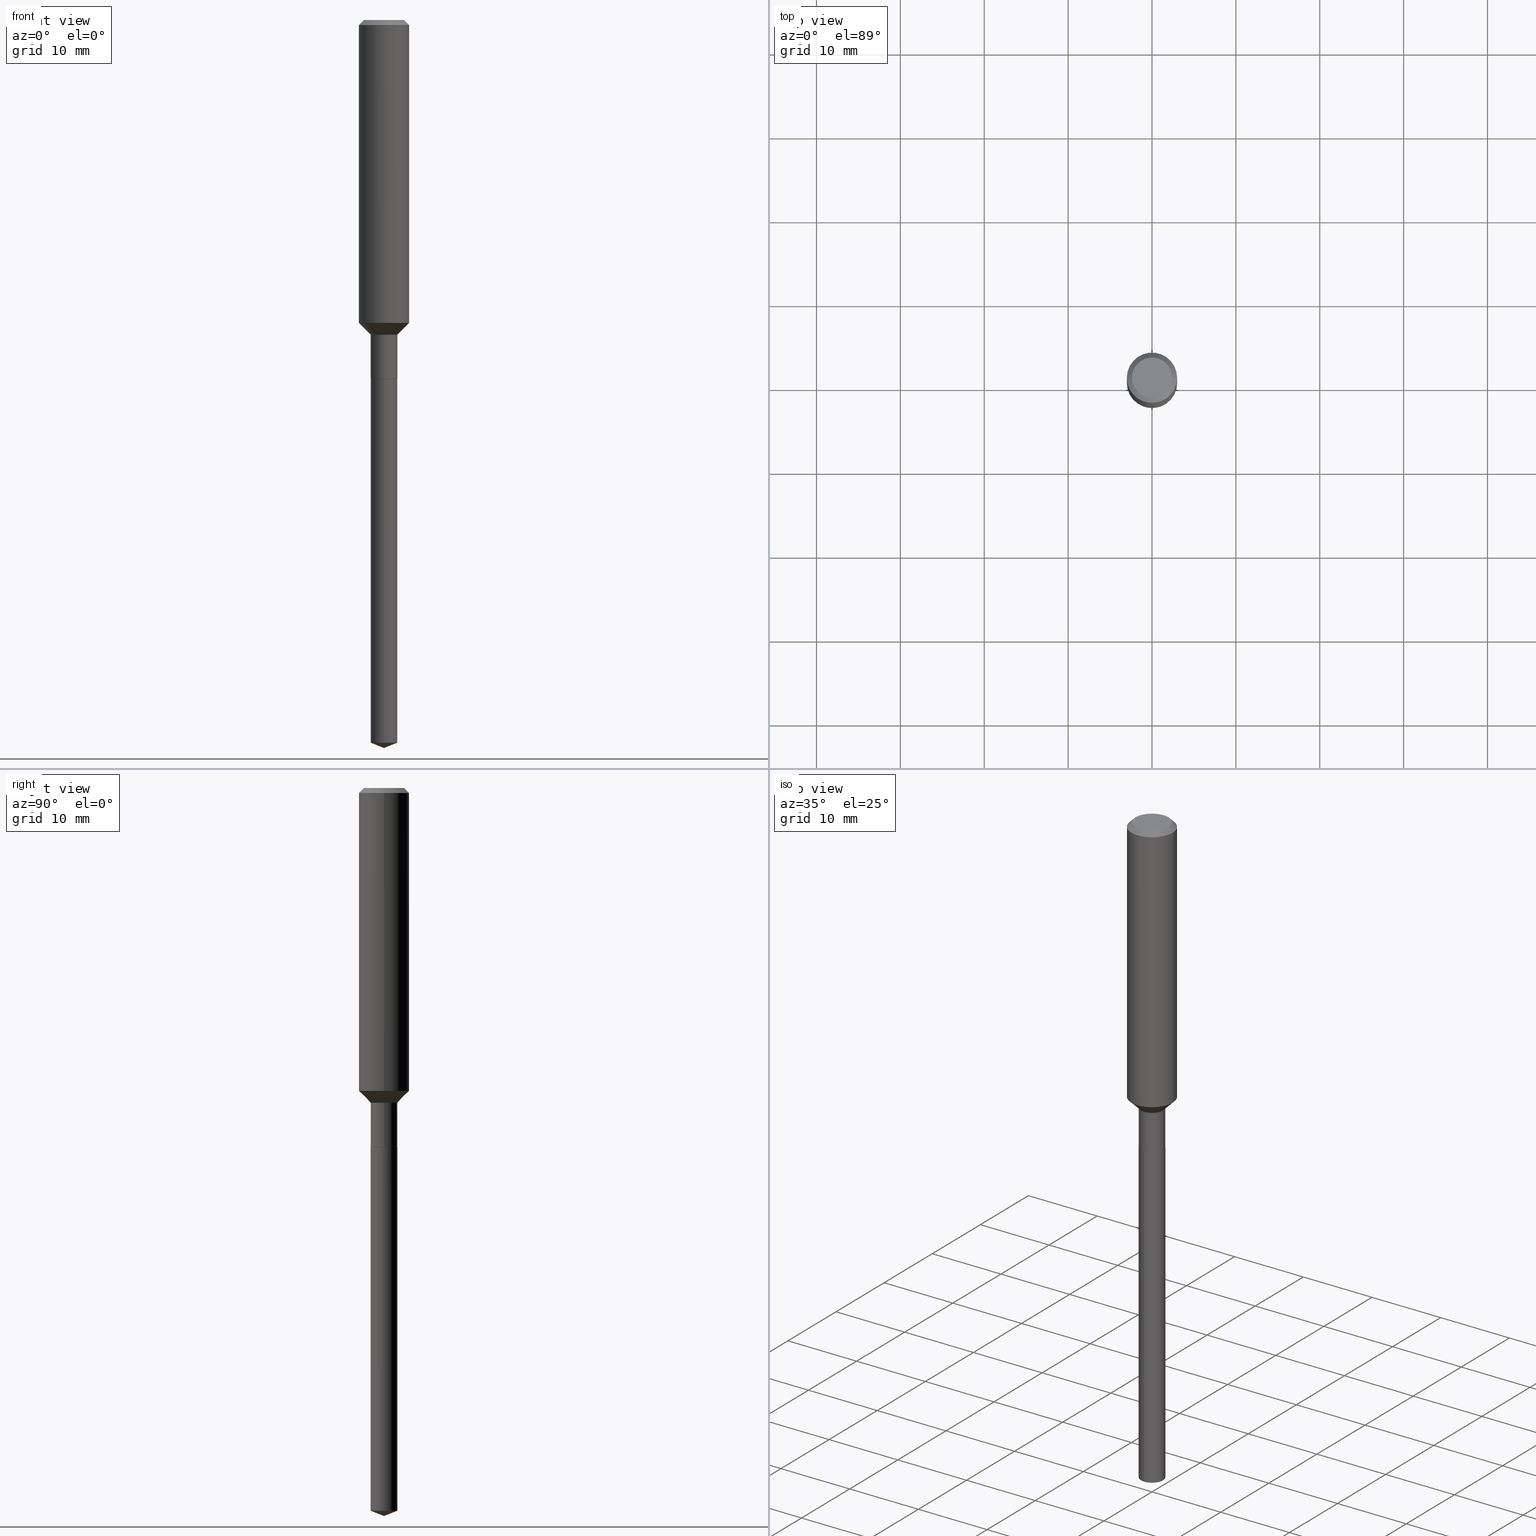
[diagram: canonical four-view strip — front | top / right | iso, engineering-drawing reading convention]
A machine part, canonical four-view strip (front | top / right | iso — engineering-drawing reading convention). The complete STEP part file that produces these views, byte-faithful:
ISO-10303-21;
HEADER;
FILE_DESCRIPTION (( 'STEP AP203' ),
    '1' );
FILE_NAME ('56508.STEP',
    '2024-04-24T18:16:03',
    ( '' ),
    ( '' ),
    'SwSTEP 2.0',
    'SolidWorks 2023',
    '' );
FILE_SCHEMA (( 'CONFIG_CONTROL_DESIGN' ));
ENDSEC;

DATA;
#1 = DIRECTION ( 'NONE',  ( -2.445468806185136597E-29, 3.491481338843145583E-15, 1.000000000000000000 ) ) ;
#2 = VERTEX_POINT ( 'NONE', #286 ) ;
#3 = PLANE ( 'NONE',  #65 ) ;
#4 = COORDINATED_UNIVERSAL_TIME_OFFSET ( 5, 0, .BEHIND. ) ;
#5 = DIRECTION ( 'NONE',  ( -2.449250081868980947E-29, 3.486066336847033927E-15, 1.000000000000000000 ) ) ;
#6 = CARTESIAN_POINT ( 'NONE',  ( 4.114990360167727561E-29, -5.875115648871358458E-15, -1.682699999999999196 ) ) ;
#7 = AXIS2_PLACEMENT_3D ( 'NONE', #366, #182, #374 ) ;
#8 = LINE ( 'NONE', #305, #319 ) ;
#9 = EDGE_LOOP ( 'NONE', ( #16, #257, #486, #443 ) ) ;
#10 = ADVANCED_FACE ( 'NONE', ( #490 ), #435, .T. ) ;
#11 = CARTESIAN_POINT ( 'NONE',  ( 0.09447999999999998066, -7.704367267948738690E-16, -2.700101262759583929E-17 ) ) ;
#12 = CARTESIAN_POINT ( 'NONE',  ( 3.612446520496680883E-29, -5.157616233739090514E-15, -1.477199999999998958 ) ) ;
#13 = DIRECTION ( 'NONE',  ( -2.449250081868980947E-29, 3.486066336847033927E-15, 1.000000000000000000 ) ) ;
#14 = SECURITY_CLASSIFICATION ( '', '', #140 ) ;
#15 = CARTESIAN_POINT ( 'NONE',  ( 6.603013411620882309E-46, -9.427353171913646324E-32, -2.700101262760083747E-17 ) ) ;
#16 = ORIENTED_EDGE ( 'NONE', *, *, #50, .F. ) ;
#17 = ORIENTED_EDGE ( 'NONE', *, *, #406, .T. ) ;
#18 = ORIENTED_EDGE ( 'NONE', *, *, #194, .F. ) ;
#19 = AXIS2_PLACEMENT_3D ( 'NONE', #193, #341, #201 ) ;
#20 = MECHANICAL_CONTEXT ( 'NONE', #469, 'mechanical' ) ;
#21 = VERTEX_POINT ( 'NONE', #68 ) ;
#22 = DATE_AND_TIME ( #207, #436 ) ;
#23 = ORIENTED_EDGE ( 'NONE', *, *, #194, .T. ) ;
#24 = PERSON_AND_ORGANIZATION ( #269, #101 ) ;
#25 = DIRECTION ( 'NONE',  ( -2.445468806185136597E-29, 3.491481338843145583E-15, 1.000000000000000000 ) ) ;
#26 = CARTESIAN_POINT ( 'NONE',  ( 0.000000000000000000, 0.000000000000000000, 0.000000000000000000 ) ) ;
#27 = ADVANCED_FACE ( 'NONE', ( #365 ), #148, .T. ) ;
#28 = CIRCLE ( 'NONE', #109, 0.06249999999999981265 ) ;
#29 = CIRCLE ( 'NONE', #118, 0.06250000000000001388 ) ;
#30 = PERSON_AND_ORGANIZATION_ROLE ( 'creator' ) ;
#31 = CYLINDRICAL_SURFACE ( 'NONE', #268, 0.06249999999999981265 ) ;
#32 = FACE_OUTER_BOUND ( 'NONE', #289, .T. ) ;
#33 = CARTESIAN_POINT ( 'NONE',  ( 4.116213094570819802E-29, -5.876861389540779961E-15, -1.683199999999999141 ) ) ;
#34 = DIRECTION ( 'NONE',  ( 1.000000000000000000, -6.982962677686266711E-15, 4.876176775795935793E-29 ) ) ;
#35 = EDGE_CURVE ( 'NONE', #168, #176, #361, .T. ) ;
#36 = DIRECTION ( 'NONE',  ( -2.445468806185136597E-29, 3.491481338843145583E-15, 1.000000000000000000 ) ) ;
#37 = CARTESIAN_POINT ( 'NONE',  ( 0.1181000000000002048, -5.788177763534160480E-15, -1.421599999999998865 ) ) ;
#38 = AXIS2_PLACEMENT_3D ( 'NONE', #12, #458, #302 ) ;
#39 = CIRCLE ( 'NONE', #489, 0.06250000000000001388 ) ;
#40 = EDGE_LOOP ( 'NONE', ( #419, #246, #376, #151 ) ) ;
#41 = CARTESIAN_POINT ( 'NONE',  ( 0.1181000000000001077, -8.246878922347488542E-16, 5.758764772215005345E-30 ) ) ;
#42 = CARTESIAN_POINT ( 'NONE',  ( 4.440892098501460382E-16, 0.06249999999999415051, -1.683199999999999363 ) ) ;
#43 = CC_DESIGN_DATE_AND_TIME_ASSIGNMENT ( #110, #133, ( #391 ) ) ;
#44 = DIRECTION ( 'NONE',  ( 6.611014441532066589E-15, 0.9304175679820270162, 0.3665012267242909738 ) ) ;
#45 = DATE_TIME_ROLE ( 'classification_date' ) ;
#46 = CYLINDRICAL_SURFACE ( 'NONE', #350, 0.1181000000000001077 ) ;
#47 = CARTESIAN_POINT ( 'NONE',  ( 3.612446520496680883E-29, -5.157616233739090514E-15, -1.477199999999998958 ) ) ;
#48 = MANIFOLD_SOLID_BREP ( 'Body-Move/Copy2[2]', #261 ) ;
#49 = EDGE_CURVE ( 'NONE', #64, #111, #292, .T. ) ;
#50 = EDGE_CURVE ( 'NONE', #111, #141, #251, .T. ) ;
#51 = AXIS2_PLACEMENT_3D ( 'NONE', #33, #25, #320 ) ;
#52 = DIRECTION ( 'NONE',  ( 1.000000000000000000, -6.982962677686269077E-15, 0.000000000000000000 ) ) ;
#53 = CIRCLE ( 'NONE', #300, 0.09447999999999998066 ) ;
#54 = DIRECTION ( 'NONE',  ( -2.445468806185136597E-29, 3.491481338843145583E-15, 1.000000000000000000 ) ) ;
#55 = DIRECTION ( 'NONE',  ( -2.445468806185136597E-29, 3.491481338843145583E-15, 1.000000000000000000 ) ) ;
#56 = DIRECTION ( 'NONE',  ( 0.7071067811864509833, -2.468850131081245741E-15, 0.7071067811866440511 ) ) ;
#57 = EDGE_LOOP ( 'NONE', ( #357, #316, #243 ) ) ;
#58 = VECTOR ( 'NONE', #260, 39.37007874015748143 ) ;
#59 = EDGE_LOOP ( 'NONE', ( #157, #205, #427, #166 ) ) ;
#60 = APPROVAL ( #437, 'UNSPECIFIED' ) ;
#61 = DESIGN_CONTEXT ( 'detailed design', #442, 'design' ) ;
#62 = ORIENTED_EDGE ( 'NONE', *, *, #35, .F. ) ;
#63 = ADVANCED_FACE ( 'NONE', ( #359 ), #475, .T. ) ;
#64 = VERTEX_POINT ( 'NONE', #183 ) ;
#65 = AXIS2_PLACEMENT_3D ( 'NONE', #220, #369, #247 ) ;
#66 = PERSON_AND_ORGANIZATION ( #269, #101 ) ;
#67 = VERTEX_POINT ( 'NONE', #212 ) ;
#68 = CARTESIAN_POINT ( 'NONE',  ( 8.369087529746306125E-29, -1.191188867300631324E-14, -3.416999999999998927 ) ) ;
#69 = DIRECTION ( 'NONE',  ( 1.000000000000000000, -6.982962677686267499E-15, 4.875432709231658792E-29 ) ) ;
#70 = PERSON_AND_ORGANIZATION ( #269, #101 ) ;
#71 = DIRECTION ( 'NONE',  ( 1.000000000000000000, -6.982962677686266711E-15, 4.876176775795935793E-29 ) ) ;
#72 = CARTESIAN_POINT ( 'NONE',  ( -0.1180999999999999966, 7.422191030112725094E-16, -0.02362000000000014435 ) ) ;
#73 = CIRCLE ( 'NONE', #385, 0.1180999999999999966 ) ;
#74 = DATE_AND_TIME ( #473, #301 ) ;
#75 = ORIENTED_EDGE ( 'NONE', *, *, #149, .T. ) ;
#76 = DIRECTION ( 'NONE',  ( 1.000000000000000000, -6.982962677686269077E-15, 0.000000000000000000 ) ) ;
#77 = ORIENTED_EDGE ( 'NONE', *, *, #481, .F. ) ;
#78 = DIRECTION ( 'NONE',  ( -2.445468806185136877E-29, 3.491481338843145188E-15, 1.000000000000000000 ) ) ;
#79 = CARTESIAN_POINT ( 'NONE',  ( -0.06249999999999981265, 4.440892098500612850E-16, -3.074334431409306655E-30 ) ) ;
#80 = DIRECTION ( 'NONE',  ( -2.449250081868980947E-29, 3.486066336847033927E-15, 1.000000000000000000 ) ) ;
#81 = CLOSED_SHELL ( 'NONE', ( #97, #387, #10, #128, #356 ) ) ;
#82 = EDGE_CURVE ( 'NONE', #438, #395, #328, .T. ) ;
#83 = AXIS2_PLACEMENT_3D ( 'NONE', #26, #453, #34 ) ;
#84 = CARTESIAN_POINT ( 'NONE',  ( 0.000000000000000000, 0.000000000000000000, 0.000000000000000000 ) ) ;
#85 = DIRECTION ( 'NONE',  ( -6.982962677686265922E-15, -1.000000000000000000, 4.370956789862820361E-15 ) ) ;
#86 = EDGE_LOOP ( 'NONE', ( #472, #314 ) ) ;
#87 = CARTESIAN_POINT ( 'NONE',  ( 3.612446520496680883E-29, -5.157616233739090514E-15, -1.477199999999998958 ) ) ;
#88 = CARTESIAN_POINT ( 'NONE',  ( -0.06249999999999981265, -5.072276731455163842E-15, -1.477199999999998958 ) ) ;
#89 = LOCAL_TIME ( 14, 16, 3.000000000000000000, #135 ) ;
#90 = EDGE_CURVE ( 'NONE', #141, #395, #422, .T. ) ;
#91 = CARTESIAN_POINT ( 'NONE',  ( -0.09447999999999998066, 7.009847083995354710E-16, -2.700101262760559836E-17 ) ) ;
#92 = ADVANCED_FACE ( 'NONE', ( #284 ), #31, .T. ) ;
#93 = LINE ( 'NONE', #234, #169 ) ;
#94 = CONICAL_SURFACE ( 'NONE', #380, 0.06200000000000004813, 0.7853981633973118326 ) ;
#95 = VERTEX_POINT ( 'NONE', #91 ) ;
#96 = ADVANCED_FACE ( 'NONE', ( #125 ), #274, .T. ) ;
#97 = ADVANCED_FACE ( 'NONE', ( #232 ), #338, .T. ) ;
#98 = EDGE_LOOP ( 'NONE', ( #310, #468, #463, #237 ) ) ;
#99 = PERSON_AND_ORGANIZATION_ROLE ( 'design_owner' ) ;
#100 = ORIENTED_EDGE ( 'NONE', *, *, #254, .F. ) ;
#101 = ORGANIZATION ( 'UNSPECIFIED', 'UNSPECIFIED', '' ) ;
#102 = CARTESIAN_POINT ( 'NONE',  ( 8.302423807474699967E-29, -1.183517832631787681E-14, -3.392380595274065325 ) ) ;
#103 = ADVANCED_BREP_SHAPE_REPRESENTATION ( '56508', ( #379, #48, #179 ), #126 ) ;
#104 = VERTEX_POINT ( 'NONE', #417 ) ;
#105 = CARTESIAN_POINT ( 'NONE',  ( 0.06249999999999981265, -5.594051401094481395E-15, -1.477199999999998958 ) ) ;
#106 = PERSON_AND_ORGANIZATION_ROLE ( 'classification_officer' ) ;
#107 = CARTESIAN_POINT ( 'NONE',  ( -8.806444569100366469E-28, 1.253257029707139032E-13, 35.95307874015747984 ) ) ;
#108 = DIRECTION ( 'NONE',  ( -2.449250081868980947E-29, 3.486066336847034322E-15, 1.000000000000000000 ) ) ;
#109 = AXIS2_PLACEMENT_3D ( 'NONE', #6, #224, #52 ) ;
#110 = DATE_AND_TIME ( #245, #262 ) ;
#111 = VERTEX_POINT ( 'NONE', #88 ) ;
#112 = DIRECTION ( 'NONE',  ( -2.449250081868980947E-29, 3.486066336847033927E-15, 1.000000000000000000 ) ) ;
#113 = CARTESIAN_POINT ( 'NONE',  ( 0.06249999999999981265, -5.594051401094481395E-15, -1.477199999999998958 ) ) ;
#114 = CARTESIAN_POINT ( 'NONE',  ( 4.116213094570819802E-29, -5.876861389540779961E-15, -1.683199999999999141 ) ) ;
#115 = ORIENTED_EDGE ( 'NONE', *, *, #439, .T. ) ;
#116 = AXIS2_PLACEMENT_3D ( 'NONE', #381, #5, #343 ) ;
#117 = EDGE_CURVE ( 'NONE', #131, #438, #122, .T. ) ;
#118 = AXIS2_PLACEMENT_3D ( 'NONE', #285, #372, #252 ) ;
#119 = CARTESIAN_POINT ( 'NONE',  ( 0.1180999999999999966, -9.071566814582237199E-16, -0.02362000000000014435 ) ) ;
#120 = CARTESIAN_POINT ( 'NONE',  ( 8.356358243284212737E-29, -1.193011773572602133E-14, -3.416999999999998927 ) ) ;
#121 = ORIENTED_EDGE ( 'NONE', *, *, #130, .F. ) ;
#122 = LINE ( 'NONE', #424, #188 ) ;
#123 = AXIS2_PLACEMENT_3D ( 'NONE', #87, #54, #382 ) ;
#124 = AXIS2_PLACEMENT_3D ( 'NONE', #190, #329, #287 ) ;
#125 = FACE_OUTER_BOUND ( 'NONE', #9, .T. ) ;
#126 =( GEOMETRIC_REPRESENTATION_CONTEXT ( 3 ) GLOBAL_UNCERTAINTY_ASSIGNED_CONTEXT ( ( #430 ) ) GLOBAL_UNIT_ASSIGNED_CONTEXT ( ( #388, #278, #276 ) ) REPRESENTATION_CONTEXT ( 'NONE', 'WORKASPACE' ) );
#127 = CARTESIAN_POINT ( 'NONE',  ( 4.116213094570819802E-29, -5.876861389540779961E-15, -1.683199999999999141 ) ) ;
#128 = ADVANCED_FACE ( 'NONE', ( #460 ), #227, .T. ) ;
#129 = PRODUCT ( '56508', '56508', '', ( #20 ) ) ;
#130 = EDGE_CURVE ( 'NONE', #440, #104, #199, .T. ) ;
#131 = VERTEX_POINT ( 'NONE', #377 ) ;
#132 = ORIENTED_EDGE ( 'NONE', *, *, #143, .F. ) ;
#133 = DATE_TIME_ROLE ( 'creation_date' ) ;
#134 = ORIENTED_EDGE ( 'NONE', *, *, #229, .T. ) ;
#135 = COORDINATED_UNIVERSAL_TIME_OFFSET ( 5, 0, .BEHIND. ) ;
#136 = VERTEX_POINT ( 'NONE', #42 ) ;
#137 = VECTOR ( 'NONE', #56, 39.37007874015748143 ) ;
#138 = CARTESIAN_POINT ( 'NONE',  ( 3.476478454872787479E-29, -4.963489871299412218E-15, -1.421599999999998865 ) ) ;
#139 = FACE_OUTER_BOUND ( 'NONE', #306, .T. ) ;
#140 = SECURITY_CLASSIFICATION_LEVEL ( 'unclassified' ) ;
#141 = VERTEX_POINT ( 'NONE', #464 ) ;
#142 = LINE ( 'NONE', #408, #236 ) ;
#143 = EDGE_CURVE ( 'NONE', #131, #64, #28, .T. ) ;
#144 = ORIENTED_EDGE ( 'NONE', *, *, #177, .T. ) ;
#145 = CARTESIAN_POINT ( 'NONE',  ( 0.06200000000000004813, -6.309805075557328624E-15, -1.683199999999999141 ) ) ;
#146 = VECTOR ( 'NONE', #209, 39.37007874015748143 ) ;
#147 = VECTOR ( 'NONE', #321, 39.37007874015748143 ) ;
#148 = CYLINDRICAL_SURFACE ( 'NONE', #349, 0.1181000000000001077 ) ;
#149 = EDGE_CURVE ( 'NONE', #2, #64, #298, .T. ) ;
#150 = CARTESIAN_POINT ( 'NONE',  ( -4.364351673553505500E-16, -0.06250000000000588418, -1.683199999999998919 ) ) ;
#151 = ORIENTED_EDGE ( 'NONE', *, *, #82, .F. ) ;
#152 = CARTESIAN_POINT ( 'NONE',  ( 6.603013411620882309E-46, -9.427353171913646324E-32, -2.700101262760083747E-17 ) ) ;
#153 = CARTESIAN_POINT ( 'NONE',  ( 4.116213094570819802E-29, -5.876861389540779961E-15, -1.683199999999999141 ) ) ;
#154 = CONICAL_SURFACE ( 'NONE', #291, 0.06249999999999981265, 0.7853981633974510546 ) ;
#155 = APPROVAL_STATUS ( 'not_yet_approved' ) ;
#156 = DIRECTION ( 'NONE',  ( -6.497071151882118258E-15, -0.9304175679820244627, 0.3665012267242974131 ) ) ;
#157 = ORIENTED_EDGE ( 'NONE', *, *, #229, .F. ) ;
#158 = CC_DESIGN_PERSON_AND_ORGANIZATION_ASSIGNMENT ( #24, #99, ( #129 ) ) ;
#159 = ORIENTED_EDGE ( 'NONE', *, *, #143, .T. ) ;
#160 = CARTESIAN_POINT ( 'NONE',  ( 4.114990360167727561E-29, -5.875115648871358458E-15, -1.682699999999999196 ) ) ;
#161 = CC_DESIGN_APPROVAL ( #60, ( #391 ) ) ;
#162 = CARTESIAN_POINT ( 'NONE',  ( 4.116213094570819802E-29, -5.876861389540779961E-15, -1.683199999999999141 ) ) ;
#163 = APPROVAL_PERSON_ORGANIZATION ( #191, #336, #256 ) ;
#164 = DIRECTION ( 'NONE',  ( -2.445468806185136597E-29, 3.491481338843145583E-15, 1.000000000000000000 ) ) ;
#165 = ORIENTED_EDGE ( 'NONE', *, *, #264, .F. ) ;
#166 = ORIENTED_EDGE ( 'NONE', *, *, #439, .F. ) ;
#167 = CIRCLE ( 'NONE', #38, 0.06249999999999981265 ) ;
#168 = VERTEX_POINT ( 'NONE', #263 ) ;
#169 = VECTOR ( 'NONE', #273, 39.37007874015748143 ) ;
#170 = ADVANCED_FACE ( 'NONE', ( #345 ), #242, .T. ) ;
#171 = EDGE_CURVE ( 'NONE', #111, #438, #167, .T. ) ;
#172 = ORIENTED_EDGE ( 'NONE', *, *, #35, .T. ) ;
#173 = PERSON_AND_ORGANIZATION ( #269, #101 ) ;
#174 = VERTEX_POINT ( 'NONE', #11 ) ;
#175 = CALENDAR_DATE ( 2024, 24, 4 ) ;
#176 = VERTEX_POINT ( 'NONE', #119 ) ;
#177 = EDGE_CURVE ( 'NONE', #2, #280, #213, .T. ) ;
#178 = LINE ( 'NONE', #72, #147 ) ;
#179 = AXIS2_PLACEMENT_3D ( 'NONE', #288, #323, #211 ) ;
#180 = PERSON_AND_ORGANIZATION ( #269, #101 ) ;
#181 = CARTESIAN_POINT ( 'NONE',  ( 0.000000000000000000, 0.000000000000000000, 0.000000000000000000 ) ) ;
#182 = DIRECTION ( 'NONE',  ( 2.445468806185136597E-29, -3.491481338843145583E-15, -1.000000000000000000 ) ) ;
#183 = CARTESIAN_POINT ( 'NONE',  ( -0.06249999999999981265, -5.072276731455163842E-15, -1.682699999999999196 ) ) ;
#184 = CYLINDRICAL_SURFACE ( 'NONE', #83, 0.06249999999999981265 ) ;
#185 = SHAPE_DEFINITION_REPRESENTATION ( #354, #103 ) ;
#186 = CARTESIAN_POINT ( 'NONE',  ( -0.06249999999999981265, -4.713527023889029476E-15, -1.477199999999998958 ) ) ;
#187 = LINE ( 'NONE', #41, #362 ) ;
#188 = VECTOR ( 'NONE', #197, 39.37007874015748143 ) ;
#189 = ORIENTED_EDGE ( 'NONE', *, *, #149, .F. ) ;
#190 = CARTESIAN_POINT ( 'NONE',  ( 3.301506705810441154E-46, -4.713676585956823162E-32, -1.350050631380041873E-17 ) ) ;
#191 = PERSON_AND_ORGANIZATION ( #269, #101 ) ;
#192 = DIRECTION ( 'NONE',  ( 1.000000000000000000, -6.982962677686266711E-15, 4.876176775795935793E-29 ) ) ;
#193 = CARTESIAN_POINT ( 'NONE',  ( 3.476478454872787479E-29, -4.963489871299412218E-15, -1.421599999999998865 ) ) ;
#194 = EDGE_CURVE ( 'NONE', #64, #131, #230, .T. ) ;
#195 = DIRECTION ( 'NONE',  ( -1.000000000000000000, 6.982962677686266711E-15, 0.000000000000000000 ) ) ;
#196 = ORIENTED_EDGE ( 'NONE', *, *, #171, .F. ) ;
#197 = DIRECTION ( 'NONE',  ( -2.445468806185136877E-29, 3.491481338843145188E-15, 1.000000000000000000 ) ) ;
#198 = LINE ( 'NONE', #346, #58 ) ;
#199 = CIRCLE ( 'NONE', #116, 0.06250000000000001388 ) ;
#200 = AXIS2_PLACEMENT_3D ( 'NONE', #47, #421, #347 ) ;
#201 = DIRECTION ( 'NONE',  ( 1.000000000000000000, -6.982962677686268288E-15, 0.000000000000000000 ) ) ;
#202 = EDGE_LOOP ( 'NONE', ( #248, #407, #386, #335 ) ) ;
#203 = EDGE_LOOP ( 'NONE', ( #189, #144, #448, #18 ) ) ;
#204 = CC_DESIGN_PERSON_AND_ORGANIZATION_ASSIGNMENT ( #403, #477, ( #456 ) ) ;
#205 = ORIENTED_EDGE ( 'NONE', *, *, #130, .T. ) ;
#206 = CIRCLE ( 'NONE', #393, 0.06250000000000001388 ) ;
#207 = CALENDAR_DATE ( 2024, 24, 4 ) ;
#208 = ORIENTED_EDGE ( 'NONE', *, *, #49, .T. ) ;
#209 = DIRECTION ( 'NONE',  ( -2.445468806185136877E-29, 3.491481338843145188E-15, 1.000000000000000000 ) ) ;
#210 = CARTESIAN_POINT ( 'NONE',  ( 4.440892098501455452E-16, 0.06249999999998816919, -3.392380595274065325 ) ) ;
#211 = DIRECTION ( 'NONE',  ( 1.000000000000000000, 0.000000000000000000, 0.000000000000000000 ) ) ;
#212 = CARTESIAN_POINT ( 'NONE',  ( -4.364351673553505500E-16, -0.06250000000000588418, -1.683199999999998919 ) ) ;
#213 = CIRCLE ( 'NONE', #445, 0.06200000000000004813 ) ;
#214 = CARTESIAN_POINT ( 'NONE',  ( 3.612446520496680883E-29, -5.157616233739090514E-15, -1.477199999999998958 ) ) ;
#215 = EDGE_CURVE ( 'NONE', #21, #104, #271, .T. ) ;
#216 = APPROVAL_ROLE ( '' ) ;
#217 = CARTESIAN_POINT ( 'NONE',  ( 0.000000000000000000, 0.000000000000000000, 0.000000000000000000 ) ) ;
#218 = DIRECTION ( 'NONE',  ( -2.445468806185136597E-29, 3.491481338843145583E-15, 1.000000000000000000 ) ) ;
#219 = ORIENTED_EDGE ( 'NONE', *, *, #49, .F. ) ;
#220 = CARTESIAN_POINT ( 'NONE',  ( 4.116213094570819802E-29, -5.876861389540779961E-15, -1.683199999999999141 ) ) ;
#221 = DIRECTION ( 'NONE',  ( 1.000000000000000000, -6.982962677686268288E-15, 0.000000000000000000 ) ) ;
#222 = FACE_OUTER_BOUND ( 'NONE', #432, .T. ) ;
#223 = CC_DESIGN_APPROVAL ( #315, ( #456 ) ) ;
#224 = DIRECTION ( 'NONE',  ( -2.445468806185136597E-29, 3.491481338843145583E-15, 1.000000000000000000 ) ) ;
#225 = DIRECTION ( 'NONE',  ( -6.982962677686265922E-15, -1.000000000000000000, 4.370956789862820361E-15 ) ) ;
#226 = ORIENTED_EDGE ( 'NONE', *, *, #358, .F. ) ;
#227 = CYLINDRICAL_SURFACE ( 'NONE', #465, 0.06250000000000001388 ) ;
#228 = EDGE_LOOP ( 'NONE', ( #390, #241, #121 ) ) ;
#229 = EDGE_CURVE ( 'NONE', #440, #136, #198, .T. ) ;
#230 = CIRCLE ( 'NONE', #334, 0.06249999999999981265 ) ;
#231 = CIRCLE ( 'NONE', #275, 0.09447999999999998066 ) ;
#232 = FACE_OUTER_BOUND ( 'NONE', #312, .T. ) ;
#233 = ADVANCED_FACE ( 'NONE', ( #413 ), #46, .T. ) ;
#234 = CARTESIAN_POINT ( 'NONE',  ( 0.1180999999999999966, -8.926936027602933910E-16, -0.02362000000000014435 ) ) ;
#235 = AXIS2_PLACEMENT_3D ( 'NONE', #162, #13, #85 ) ;
#236 = VECTOR ( 'NONE', #78, 39.37007874015748143 ) ;
#237 = ORIENTED_EDGE ( 'NONE', *, *, #406, .F. ) ;
#238 = EDGE_CURVE ( 'NONE', #395, #141, #466, .T. ) ;
#239 = ORIENTED_EDGE ( 'NONE', *, *, #339, .T. ) ;
#240 = CC_DESIGN_PERSON_AND_ORGANIZATION_ASSIGNMENT ( #173, #106, ( #14 ) ) ;
#241 = ORIENTED_EDGE ( 'NONE', *, *, #215, .T. ) ;
#242 = CONICAL_SURFACE ( 'NONE', #378, 0.1180999999999999966, 0.7853981633974460586 ) ;
#243 = ORIENTED_EDGE ( 'NONE', *, *, #344, .F. ) ;
#244 = CC_DESIGN_SECURITY_CLASSIFICATION ( #14, ( #456 ) ) ;
#245 = CALENDAR_DATE ( 2024, 24, 4 ) ;
#246 = ORIENTED_EDGE ( 'NONE', *, *, #50, .T. ) ;
#247 = DIRECTION ( 'NONE',  ( 1.000000000000000000, -6.982962677686265922E-15, 4.876176775795935793E-29 ) ) ;
#248 = ORIENTED_EDGE ( 'NONE', *, *, #272, .F. ) ;
#249 = FACE_OUTER_BOUND ( 'NONE', #282, .T. ) ;
#250 = APPROVAL_DATE_TIME ( #22, #315 ) ;
#251 = LINE ( 'NONE', #186, #332 ) ;
#252 = DIRECTION ( 'NONE',  ( -6.982962677686265922E-15, -1.000000000000000000, 4.370956789862820361E-15 ) ) ;
#253 = ORIENTED_EDGE ( 'NONE', *, *, #259, .T. ) ;
#254 = EDGE_CURVE ( 'NONE', #174, #176, #93, .T. ) ;
#255 = DIRECTION ( 'NONE',  ( -6.982962677686265133E-15, -1.000000000000000000, 0.000000000000000000 ) ) ;
#256 = APPROVAL_ROLE ( '' ) ;
#257 = ORIENTED_EDGE ( 'NONE', *, *, #171, .T. ) ;
#258 = DIRECTION ( 'NONE',  ( -2.449250081868980947E-29, 3.486066336847033927E-15, 1.000000000000000000 ) ) ;
#259 = EDGE_CURVE ( 'NONE', #280, #2, #429, .T. ) ;
#260 = DIRECTION ( 'NONE',  ( -2.449250081868980947E-29, 3.486066336847034322E-15, 1.000000000000000000 ) ) ;
#261 = CLOSED_SHELL ( 'NONE', ( #63, #170, #233, #452, #418, #92, #96, #27, #457, #383, #367, #313 ) ) ;
#262 = LOCAL_TIME ( 14, 16, 3.000000000000000000, #482 ) ;
#263 = CARTESIAN_POINT ( 'NONE',  ( -0.1180999999999999966, -1.683828359328764063E-15, -0.02362000000000014435 ) ) ;
#264 = EDGE_CURVE ( 'NONE', #280, #131, #426, .T. ) ;
#265 = ORIENTED_EDGE ( 'NONE', *, *, #339, .F. ) ;
#266 = CARTESIAN_POINT ( 'NONE',  ( 4.116213094570819802E-29, -5.876861389540779961E-15, -1.683199999999999141 ) ) ;
#267 = DIRECTION ( 'NONE',  ( 1.000000000000000000, -6.982962677686266711E-15, 0.000000000000000000 ) ) ;
#268 = AXIS2_PLACEMENT_3D ( 'NONE', #181, #324, #483 ) ;
#269 = PERSON ( 'UNSPECIFIED', 'UNSPECIFIED', 'UNSPECIFIED', ('UNSPECIFIED'), ('UNSPECIFIED'), ('UNSPECIFIED') ) ;
#270 = CONICAL_SURFACE ( 'NONE', #7, 0.1180999999999999966, 0.7853981633974460586 ) ;
#271 = LINE ( 'NONE', #120, #423 ) ;
#272 = EDGE_CURVE ( 'NONE', #174, #95, #53, .T. ) ;
#273 = DIRECTION ( 'NONE',  ( 0.7071067811865459074, -7.319954787623249734E-15, -0.7071067811865491270 ) ) ;
#274 = CONICAL_SURFACE ( 'NONE', #123, 0.06249999999999981265, 0.7853981633974510546 ) ;
#275 = AXIS2_PLACEMENT_3D ( 'NONE', #152, #1, #69 ) ;
#276 =( NAMED_UNIT ( * ) SI_UNIT ( $, .STERADIAN. ) SOLID_ANGLE_UNIT ( ) );
#277 = ORIENTED_EDGE ( 'NONE', *, *, #431, .F. ) ;
#278 =( NAMED_UNIT ( * ) PLANE_ANGLE_UNIT ( ) SI_UNIT ( $, .RADIAN. ) );
#279 = COORDINATED_UNIVERSAL_TIME_OFFSET ( 5, 0, .BEHIND. ) ;
#280 = VERTEX_POINT ( 'NONE', #145 ) ;
#281 = AXIS2_PLACEMENT_3D ( 'NONE', #127, #311, #351 ) ;
#282 = EDGE_LOOP ( 'NONE', ( #239, #115 ) ) ;
#283 = APPROVAL_ROLE ( '' ) ;
#284 = FACE_OUTER_BOUND ( 'NONE', #355, .T. ) ;
#285 = CARTESIAN_POINT ( 'NONE',  ( 4.116213094570819802E-29, -5.876861389540779961E-15, -1.683199999999999141 ) ) ;
#286 = CARTESIAN_POINT ( 'NONE',  ( -0.06200000000000004813, -5.433675666195407831E-15, -1.683199999999999141 ) ) ;
#287 = DIRECTION ( 'NONE',  ( -1.000000000000000000, 6.982962677686265922E-15, -4.876176775795935793E-29 ) ) ;
#288 = CARTESIAN_POINT ( 'NONE',  ( 0.000000000000000000, 0.000000000000000000, 0.000000000000000000 ) ) ;
#289 = EDGE_LOOP ( 'NONE', ( #100, #471, #399, #172 ) ) ;
#290 = FACE_OUTER_BOUND ( 'NONE', #203, .T. ) ;
#291 = AXIS2_PLACEMENT_3D ( 'NONE', #214, #405, #76 ) ;
#292 = LINE ( 'NONE', #79, #146 ) ;
#293 = CARTESIAN_POINT ( 'NONE',  ( 4.116213094570819802E-29, -5.876861389540779961E-15, -1.683199999999999141 ) ) ;
#294 = DIRECTION ( 'NONE',  ( -2.445468806185136597E-29, 3.491481338843145583E-15, 1.000000000000000000 ) ) ;
#295 = DIMENSIONAL_EXPONENTS ( 1.000000000000000000, 0.000000000000000000, 0.000000000000000000, 0.000000000000000000, 0.000000000000000000, 0.000000000000000000, 0.000000000000000000 ) ;
#296 = DIRECTION ( 'NONE',  ( 1.000000000000000000, -6.982962677686267499E-15, 4.875432709231658792E-29 ) ) ;
#297 = CALENDAR_DATE ( 2024, 24, 4 ) ;
#298 = LINE ( 'NONE', #455, #299 ) ;
#299 = VECTOR ( 'NONE', #416, 39.37007874015748143 ) ;
#300 = AXIS2_PLACEMENT_3D ( 'NONE', #15, #164, #296 ) ;
#301 = LOCAL_TIME ( 14, 16, 3.000000000000000000, #317 ) ;
#302 = DIRECTION ( 'NONE',  ( 1.000000000000000000, -6.982962677686269077E-15, 0.000000000000000000 ) ) ;
#303 = DATE_AND_TIME ( #297, #401 ) ;
#304 = CARTESIAN_POINT ( 'NONE',  ( 5.776197320209328408E-31, -8.246878922347560526E-17, -0.02362000000000014435 ) ) ;
#305 = CARTESIAN_POINT ( 'NONE',  ( 8.369199150562861350E-29, -1.191188867300631166E-14, -3.416999999999998927 ) ) ;
#306 = EDGE_LOOP ( 'NONE', ( #159, #208, #77, #389 ) ) ;
#307 = DIRECTION ( 'NONE',  ( 1.000000000000000000, -6.982962677686269077E-15, 0.000000000000000000 ) ) ;
#308 = CIRCLE ( 'NONE', #200, 0.06249999999999981265 ) ;
#309 = DIRECTION ( 'NONE',  ( -2.445468806185136597E-29, 3.491481338843145583E-15, 1.000000000000000000 ) ) ;
#310 = ORIENTED_EDGE ( 'NONE', *, *, #238, .T. ) ;
#311 = DIRECTION ( 'NONE',  ( -2.445468806185136597E-29, 3.491481338843145583E-15, 1.000000000000000000 ) ) ;
#312 = EDGE_LOOP ( 'NONE', ( #331, #134, #265, #277 ) ) ;
#313 = ADVANCED_FACE ( 'NONE', ( #290 ), #94, .T. ) ;
#314 = ORIENTED_EDGE ( 'NONE', *, *, #177, .F. ) ;
#315 = APPROVAL ( #396, 'UNSPECIFIED' ) ;
#316 = ORIENTED_EDGE ( 'NONE', *, *, #461, .T. ) ;
#317 = COORDINATED_UNIVERSAL_TIME_OFFSET ( 5, 0, .BEHIND. ) ;
#318 = PERSON_AND_ORGANIZATION ( #269, #101 ) ;
#319 = VECTOR ( 'NONE', #44, 39.37007874015748143 ) ;
#320 = DIRECTION ( 'NONE',  ( 1.000000000000000000, -6.982962677686265133E-15, 0.000000000000000000 ) ) ;
#321 = DIRECTION ( 'NONE',  ( -0.7071067811865459074, 2.468850131082240100E-15, -0.7071067811865491270 ) ) ;
#322 =( LENGTH_UNIT ( ) NAMED_UNIT ( * ) SI_UNIT ( $, .METRE. ) );
#323 = DIRECTION ( 'NONE',  ( 0.000000000000000000, 0.000000000000000000, 1.000000000000000000 ) ) ;
#324 = DIRECTION ( 'NONE',  ( -2.445468806185136597E-29, 3.491481338843145583E-15, 1.000000000000000000 ) ) ;
#325 = FACE_OUTER_BOUND ( 'NONE', #57, .T. ) ;
#326 = CC_DESIGN_PERSON_AND_ORGANIZATION_ASSIGNMENT ( #66, #30, ( #391 ) ) ;
#327 = APPLICATION_PROTOCOL_DEFINITION ( 'international standard', 'config_control_design', 1994, #469 ) ;
#328 = LINE ( 'NONE', #113, #412 ) ;
#329 = DIRECTION ( 'NONE',  ( 2.438088387897960049E-29, -3.491481338843145188E-15, -1.000000000000000000 ) ) ;
#330 = AXIS2_PLACEMENT_3D ( 'NONE', #107, #368, #410 ) ;
#331 = ORIENTED_EDGE ( 'NONE', *, *, #344, .T. ) ;
#332 = VECTOR ( 'NONE', #451, 39.37007874015748854 ) ;
#333 = PLANE ( 'NONE',  #392 ) ;
#334 = AXIS2_PLACEMENT_3D ( 'NONE', #160, #55, #307 ) ;
#335 = ORIENTED_EDGE ( 'NONE', *, *, #449, .F. ) ;
#336 = APPROVAL ( #155, 'UNSPECIFIED' ) ;
#337 = DIRECTION ( 'NONE',  ( 2.449250081868980387E-29, -3.486066336847034322E-15, -1.000000000000000000 ) ) ;
#338 = CYLINDRICAL_SURFACE ( 'NONE', #235, 0.06250000000000001388 ) ;
#339 = EDGE_CURVE ( 'NONE', #67, #136, #29, .T. ) ;
#340 = ORIENTED_EDGE ( 'NONE', *, *, #117, .T. ) ;
#341 = DIRECTION ( 'NONE',  ( -2.445468806185136597E-29, 3.491481338843145583E-15, 1.000000000000000000 ) ) ;
#342 = AXIS2_PLACEMENT_3D ( 'NONE', #364, #80, #441 ) ;
#343 = DIRECTION ( 'NONE',  ( -6.982962677686265133E-15, -1.000000000000000000, 0.000000000000000000 ) ) ;
#344 = EDGE_CURVE ( 'NONE', #104, #440, #206, .T. ) ;
#345 = FACE_OUTER_BOUND ( 'NONE', #202, .T. ) ;
#346 = CARTESIAN_POINT ( 'NONE',  ( 4.440892098501038342E-16, 0.06249999999999414357, -1.683199999999999363 ) ) ;
#347 = DIRECTION ( 'NONE',  ( 1.000000000000000000, -6.982962677686269077E-15, 0.000000000000000000 ) ) ;
#348 = EDGE_LOOP ( 'NONE', ( #253, #75, #132, #165 ) ) ;
#349 = AXIS2_PLACEMENT_3D ( 'NONE', #217, #294, #71 ) ;
#350 = AXIS2_PLACEMENT_3D ( 'NONE', #84, #373, #192 ) ;
#351 = DIRECTION ( 'NONE',  ( 1.000000000000000000, -6.982962677686265133E-15, 0.000000000000000000 ) ) ;
#352 = EDGE_LOOP ( 'NONE', ( #226, #353, #17, #62 ) ) ;
#353 = ORIENTED_EDGE ( 'NONE', *, *, #90, .T. ) ;
#354 = PRODUCT_DEFINITION_SHAPE ( 'NONE', 'NONE',  #391 ) ;
#355 = EDGE_LOOP ( 'NONE', ( #219, #23, #340, #196 ) ) ;
#356 = ADVANCED_FACE ( 'NONE', ( #249 ), #333, .F. ) ;
#357 = ORIENTED_EDGE ( 'NONE', *, *, #215, .F. ) ;
#358 = EDGE_CURVE ( 'NONE', #141, #168, #142, .T. ) ;
#359 = FACE_OUTER_BOUND ( 'NONE', #348, .T. ) ;
#360 = DIRECTION ( 'NONE',  ( -2.445468806185136877E-29, 3.491481338843145188E-15, 1.000000000000000000 ) ) ;
#361 = CIRCLE ( 'NONE', #402, 0.1180999999999999966 ) ;
#362 = VECTOR ( 'NONE', #360, 39.37007874015748143 ) ;
#363 = DIRECTION ( 'NONE',  ( -2.445468806185136597E-29, 3.491481338843145583E-15, 1.000000000000000000 ) ) ;
#364 = CARTESIAN_POINT ( 'NONE',  ( -8.806444569100366469E-28, 1.253257029707139032E-13, 35.95307874015747984 ) ) ;
#365 = FACE_OUTER_BOUND ( 'NONE', #352, .T. ) ;
#366 = CARTESIAN_POINT ( 'NONE',  ( 5.776197320209328408E-31, -8.246878922347560526E-17, -0.02362000000000014435 ) ) ;
#367 = ADVANCED_FACE ( 'NONE', ( #487 ), #3, .F. ) ;
#368 = DIRECTION ( 'NONE',  ( -2.449250081868980947E-29, 3.486066336847033927E-15, 1.000000000000000000 ) ) ;
#369 = DIRECTION ( 'NONE',  ( -2.438088387897960049E-29, 3.491481338843145188E-15, 1.000000000000000000 ) ) ;
#370 = ORIENTED_EDGE ( 'NONE', *, *, #425, .T. ) ;
#371 = APPROVAL_PERSON_ORGANIZATION ( #180, #315, #283 ) ;
#372 = DIRECTION ( 'NONE',  ( -2.449250081868980947E-29, 3.486066336847033927E-15, 1.000000000000000000 ) ) ;
#373 = DIRECTION ( 'NONE',  ( -2.445468806185136597E-29, 3.491481338843145583E-15, 1.000000000000000000 ) ) ;
#374 = DIRECTION ( 'NONE',  ( -1.000000000000000000, 6.982962677686266711E-15, 0.000000000000000000 ) ) ;
#375 = DIRECTION ( 'NONE',  ( 2.445468806185136597E-29, -3.491481338843145583E-15, -1.000000000000000000 ) ) ;
#376 = ORIENTED_EDGE ( 'NONE', *, *, #238, .F. ) ;
#377 = CARTESIAN_POINT ( 'NONE',  ( 0.06249999999999981265, -6.311550816226749338E-15, -1.682699999999999196 ) ) ;
#378 = AXIS2_PLACEMENT_3D ( 'NONE', #304, #375, #195 ) ;
#379 = MANIFOLD_SOLID_BREP ( 'Body-Move/Copy2[1]', #81 ) ;
#380 = AXIS2_PLACEMENT_3D ( 'NONE', #293, #218, #450 ) ;
#381 = CARTESIAN_POINT ( 'NONE',  ( 8.302423807474699967E-29, -1.183517832631787681E-14, -3.392380595274065325 ) ) ;
#382 = DIRECTION ( 'NONE',  ( 1.000000000000000000, -6.982962677686269077E-15, 0.000000000000000000 ) ) ;
#383 = ADVANCED_FACE ( 'NONE', ( #222 ), #398, .F. ) ;
#384 = CARTESIAN_POINT ( 'NONE',  ( 0.06200000000000004813, -6.309805075557328624E-15, -1.683199999999999141 ) ) ;
#385 = AXIS2_PLACEMENT_3D ( 'NONE', #459, #462, #267 ) ;
#386 = ORIENTED_EDGE ( 'NONE', *, *, #474, .T. ) ;
#387 = ADVANCED_FACE ( 'NONE', ( #325 ), #447, .T. ) ;
#388 =( CONVERSION_BASED_UNIT ( 'INCH', #480 ) LENGTH_UNIT ( ) NAMED_UNIT ( #295 ) );
#389 = ORIENTED_EDGE ( 'NONE', *, *, #117, .F. ) ;
#390 = ORIENTED_EDGE ( 'NONE', *, *, #461, .F. ) ;
#391 = PRODUCT_DEFINITION ( 'UNKNOWN', '', #456, #61 ) ;
#392 = AXIS2_PLACEMENT_3D ( 'NONE', #484, #337, #411 ) ;
#393 = AXIS2_PLACEMENT_3D ( 'NONE', #102, #112, #255 ) ;
#394 = APPLICATION_PROTOCOL_DEFINITION ( 'international standard', 'config_control_design', 1994, #442 ) ;
#395 = VERTEX_POINT ( 'NONE', #37 ) ;
#396 = APPROVAL_STATUS ( 'not_yet_approved' ) ;
#397 = ORIENTED_EDGE ( 'NONE', *, *, #272, .T. ) ;
#398 = PLANE ( 'NONE',  #124 ) ;
#399 = ORIENTED_EDGE ( 'NONE', *, *, #449, .T. ) ;
#400 = DIRECTION ( 'NONE',  ( -6.982962677686265922E-15, -1.000000000000000000, 4.370956789862820361E-15 ) ) ;
#401 = LOCAL_TIME ( 14, 16, 3.000000000000000000, #4 ) ;
#402 = AXIS2_PLACEMENT_3D ( 'NONE', #454, #36, #404 ) ;
#403 = PERSON_AND_ORGANIZATION ( #269, #101 ) ;
#404 = DIRECTION ( 'NONE',  ( 1.000000000000000000, -6.982962677686266711E-15, 0.000000000000000000 ) ) ;
#405 = DIRECTION ( 'NONE',  ( -2.445468806185136597E-29, 3.491481338843145583E-15, 1.000000000000000000 ) ) ;
#406 = EDGE_CURVE ( 'NONE', #395, #176, #187, .T. ) ;
#407 = ORIENTED_EDGE ( 'NONE', *, *, #254, .T. ) ;
#408 = CARTESIAN_POINT ( 'NONE',  ( -0.1181000000000001077, 8.391509709326790846E-16, -5.809262341591049389E-30 ) ) ;
#409 = APPROVAL_DATE_TIME ( #303, #336 ) ;
#410 = DIRECTION ( 'NONE',  ( -6.982962677686265922E-15, -1.000000000000000000, 3.498627837350008561E-15 ) ) ;
#411 = DIRECTION ( 'NONE',  ( 6.982962677686265922E-15, 1.000000000000000000, -3.486066336847034322E-15 ) ) ;
#412 = VECTOR ( 'NONE', #478, 39.37007874015748854 ) ;
#413 = FACE_OUTER_BOUND ( 'NONE', #98, .T. ) ;
#414 = VECTOR ( 'NONE', #108, 39.37007874015748143 ) ;
#415 = CC_DESIGN_APPROVAL ( #336, ( #14 ) ) ;
#416 = DIRECTION ( 'NONE',  ( -0.7071067811864509833, 7.493145998870005484E-15, 0.7071067811866440511 ) ) ;
#417 = CARTESIAN_POINT ( 'NONE',  ( -4.364351673553084939E-16, -0.06250000000001182388, -3.392380595274065325 ) ) ;
#418 = ADVANCED_FACE ( 'NONE', ( #139 ), #184, .T. ) ;
#419 = ORIENTED_EDGE ( 'NONE', *, *, #481, .T. ) ;
#420 = DIRECTION ( 'NONE',  ( -2.449250081868980947E-29, 3.486066336847033927E-15, 1.000000000000000000 ) ) ;
#421 = DIRECTION ( 'NONE',  ( -2.445468806185136597E-29, 3.491481338843145583E-15, 1.000000000000000000 ) ) ;
#422 = CIRCLE ( 'NONE', #428, 0.1181000000000002048 ) ;
#423 = VECTOR ( 'NONE', #156, 39.37007874015748143 ) ;
#424 = CARTESIAN_POINT ( 'NONE',  ( 0.06249999999999981265, -4.364351673553903382E-16, 3.047610484872450762E-30 ) ) ;
#425 = EDGE_CURVE ( 'NONE', #95, #174, #231, .T. ) ;
#426 = LINE ( 'NONE', #384, #137 ) ;
#427 = ORIENTED_EDGE ( 'NONE', *, *, #431, .T. ) ;
#428 = AXIS2_PLACEMENT_3D ( 'NONE', #138, #363, #221 ) ;
#429 = CIRCLE ( 'NONE', #281, 0.06200000000000004813 ) ;
#430 = UNCERTAINTY_MEASURE_WITH_UNIT (LENGTH_MEASURE( 1.000000000000000082E-05 ), #388, 'distance_accuracy_value', 'NONE');
#431 = EDGE_CURVE ( 'NONE', #104, #67, #444, .T. ) ;
#432 = EDGE_LOOP ( 'NONE', ( #370, #397 ) ) ;
#433 = CC_DESIGN_PERSON_AND_ORGANIZATION_ASSIGNMENT ( #318, #434, ( #456 ) ) ;
#434 = PERSON_AND_ORGANIZATION_ROLE ( 'creator' ) ;
#435 = CONICAL_SURFACE ( 'NONE', #330, 99.94676754583984746, 1.195550537616119069 ) ;
#436 = LOCAL_TIME ( 14, 16, 3.000000000000000000, #279 ) ;
#437 = APPROVAL_STATUS ( 'not_yet_approved' ) ;
#438 = VERTEX_POINT ( 'NONE', #105 ) ;
#439 = EDGE_CURVE ( 'NONE', #136, #67, #39, .T. ) ;
#440 = VERTEX_POINT ( 'NONE', #210 ) ;
#441 = DIRECTION ( 'NONE',  ( -6.982962677686265922E-15, -1.000000000000000000, 3.498627837350008561E-15 ) ) ;
#442 = APPLICATION_CONTEXT ( 'configuration controlled 3d designs of mechanical parts and assemblies' ) ;
#443 = ORIENTED_EDGE ( 'NONE', *, *, #90, .F. ) ;
#444 = LINE ( 'NONE', #150, #414 ) ;
#445 = AXIS2_PLACEMENT_3D ( 'NONE', #153, #309, #467 ) ;
#446 = APPROVAL_DATE_TIME ( #485, #60 ) ;
#447 = CONICAL_SURFACE ( 'NONE', #342, 99.94676754583984746, 1.195550537616119069 ) ;
#448 = ORIENTED_EDGE ( 'NONE', *, *, #264, .T. ) ;
#449 = EDGE_CURVE ( 'NONE', #95, #168, #178, .T. ) ;
#450 = DIRECTION ( 'NONE',  ( 1.000000000000000000, -6.982962677686265133E-15, 0.000000000000000000 ) ) ;
#451 = DIRECTION ( 'NONE',  ( -0.7071067811865493491, 7.493145998870358893E-15, 0.7071067811865454633 ) ) ;
#452 = ADVANCED_FACE ( 'NONE', ( #479 ), #154, .T. ) ;
#453 = DIRECTION ( 'NONE',  ( -2.445468806185136597E-29, 3.491481338843145583E-15, 1.000000000000000000 ) ) ;
#454 = CARTESIAN_POINT ( 'NONE',  ( 5.776197320209328408E-31, -8.246878922347560526E-17, -0.02362000000000014435 ) ) ;
#455 = CARTESIAN_POINT ( 'NONE',  ( -0.06200000000000004813, -5.436324893369517455E-15, -1.683199999999999141 ) ) ;
#456 = PRODUCT_DEFINITION_FORMATION_WITH_SPECIFIED_SOURCE ( 'ANY', '', #129, .NOT_KNOWN. ) ;
#457 = ADVANCED_FACE ( 'NONE', ( #32 ), #270, .T. ) ;
#458 = DIRECTION ( 'NONE',  ( -2.445468806185136597E-29, 3.491481338843145583E-15, 1.000000000000000000 ) ) ;
#459 = CARTESIAN_POINT ( 'NONE',  ( 5.776197320209328408E-31, -8.246878922347560526E-17, -0.02362000000000014435 ) ) ;
#460 = FACE_OUTER_BOUND ( 'NONE', #59, .T. ) ;
#461 = EDGE_CURVE ( 'NONE', #21, #440, #8, .T. ) ;
#462 = DIRECTION ( 'NONE',  ( -2.445468806185136597E-29, 3.491481338843145583E-15, 1.000000000000000000 ) ) ;
#463 = ORIENTED_EDGE ( 'NONE', *, *, #474, .F. ) ;
#464 = CARTESIAN_POINT ( 'NONE',  ( -0.1181000000000002048, -4.124338900366731654E-15, -1.421599999999998865 ) ) ;
#465 = AXIS2_PLACEMENT_3D ( 'NONE', #266, #420, #225 ) ;
#466 = CIRCLE ( 'NONE', #19, 0.1181000000000002048 ) ;
#467 = DIRECTION ( 'NONE',  ( 1.000000000000000000, -6.982962677686265133E-15, 0.000000000000000000 ) ) ;
#468 = ORIENTED_EDGE ( 'NONE', *, *, #358, .T. ) ;
#469 = APPLICATION_CONTEXT ( 'configuration controlled 3d designs of mechanical parts and assemblies' ) ;
#470 = PRODUCT_RELATED_PRODUCT_CATEGORY ( 'detail', '', ( #129 ) ) ;
#471 = ORIENTED_EDGE ( 'NONE', *, *, #425, .F. ) ;
#472 = ORIENTED_EDGE ( 'NONE', *, *, #259, .F. ) ;
#473 = CALENDAR_DATE ( 2024, 24, 4 ) ;
#474 = EDGE_CURVE ( 'NONE', #176, #168, #73, .T. ) ;
#475 = CONICAL_SURFACE ( 'NONE', #51, 0.06200000000000004813, 0.7853981633973118326 ) ;
#476 = APPROVAL_PERSON_ORGANIZATION ( #70, #60, #216 ) ;
#477 = PERSON_AND_ORGANIZATION_ROLE ( 'design_supplier' ) ;
#478 = DIRECTION ( 'NONE',  ( 0.7071067811865493491, -2.468850131082277177E-15, 0.7071067811865454633 ) ) ;
#479 = FACE_OUTER_BOUND ( 'NONE', #40, .T. ) ;
#480 = LENGTH_MEASURE_WITH_UNIT ( LENGTH_MEASURE( 0.02539999999999999897 ), #322 );
#481 = EDGE_CURVE ( 'NONE', #438, #111, #308, .T. ) ;
#482 = COORDINATED_UNIVERSAL_TIME_OFFSET ( 5, 0, .BEHIND. ) ;
#483 = DIRECTION ( 'NONE',  ( 1.000000000000000000, -6.982962677686266711E-15, 4.876176775795935793E-29 ) ) ;
#484 = CARTESIAN_POINT ( 'NONE',  ( 4.116213094570819802E-29, -5.876861389540779961E-15, -1.683199999999999141 ) ) ;
#485 = DATE_AND_TIME ( #175, #89 ) ;
#486 = ORIENTED_EDGE ( 'NONE', *, *, #82, .T. ) ;
#487 = FACE_OUTER_BOUND ( 'NONE', #86, .T. ) ;
#488 = CC_DESIGN_DATE_AND_TIME_ASSIGNMENT ( #74, #45, ( #14 ) ) ;
#489 = AXIS2_PLACEMENT_3D ( 'NONE', #114, #258, #400 ) ;
#490 = FACE_OUTER_BOUND ( 'NONE', #228, .T. ) ;
ENDSEC;
END-ISO-10303-21;
